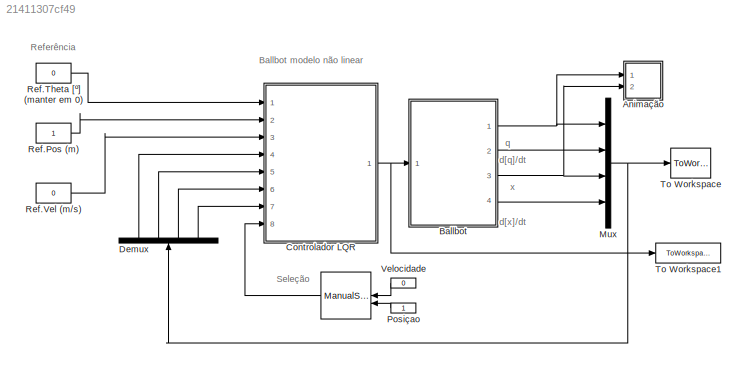
MODEL slx_21411307cf49
KIND model
CONFIG AbsTol = 1e-6
CONFIG FixedStep = auto
CONFIG InitFcn = parametros;\n\n\n
CONFIG MaxStep = 0.001
CONFIG MinStep = auto
CONFIG RelTol = 1e-3
CONFIG SampleTimeConstraint = Unconstrained
CONFIG Solver = ode45
CONFIG SolverMode = SingleTasking
CONFIG SolverName = ode45
CONFIG StartFcn = %vrview('Ballbot2')
CONFIG StartTime = 0
CONFIG StopFcn = graficos;
CONFIG StopTime = 90
BLOCK [ManualSwitch]  
  CurrentSetting = 0
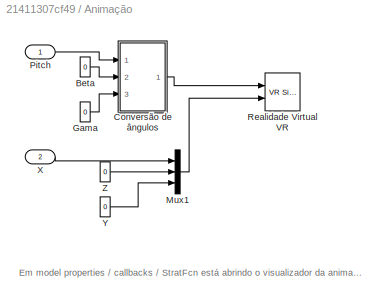
BLOCK [SubSystem] Animação 
  Ports = [2]
  RequestExecContextInheritance = off
BLOCK [Constant] Animação /Beta
  Value = 0
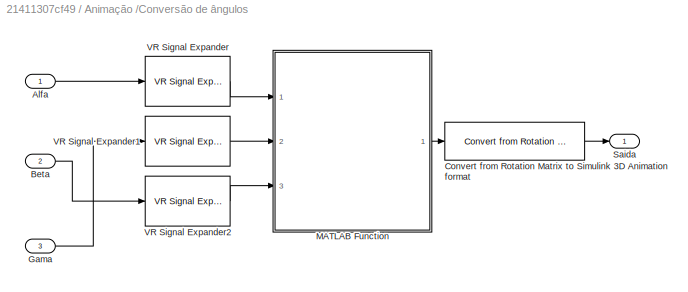
BLOCK [SubSystem] Animação /Conversão de ângulos
  Ports = [3, 1]
  RequestExecContextInheritance = off
BLOCK [Inport] Animação /Conversão de ângulos/Alfa
  IconDisplay = Port number
BLOCK [Inport] Animação /Conversão de ângulos/Beta
  IconDisplay = Port number
  Port = 2
BLOCK [Reference] Animação /Conversão de ângulos/Convert from Rotation Matrix to Simulink 3D Animation format  REF=mblibv1/Utilities/Convert from Rotation Matrix to
Simulink 3D Animation format
  Ports = [1, 1]
  SourceBlock = mblibv1/Utilities/Convert from Rotation Matrix to\nSimulink 3D Animation format
  SourceType = Convert from Rotation Matrix to Simulink 3D Animation format
BLOCK [Inport] Animação /Conversão de ângulos/Gama
  IconDisplay = Port number
  Port = 3
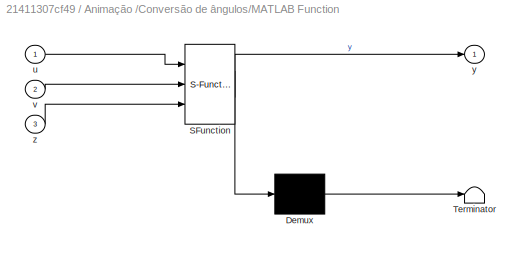
BLOCK [SubSystem] Animação /Conversão de ângulos/MATLAB Function
  ErrorFcn = Stateflow.Translate.translate
  PermitHierarchicalResolution = ExplicitOnly
  Ports = [3, 1]
  RequestExecContextInheritance = off
  SFBlockType = MATLAB Function
  TreatAsAtomicUnit = on
BLOCK [Demux] Animação /Conversão de ângulos/MATLAB Function/ Demux 
  Outputs = 1
  Ports = [1, 1]
BLOCK [S-Function] Animação /Conversão de ângulos/MATLAB Function/ SFunction 
  EnableBusSupport = on
  FunctionName = sf_sfun
  PortCounts = [3 2]
  Ports = [3, 2]
  Tag = Stateflow S-Function BALLBOT_LMI2 2
BLOCK [Terminator] Animação /Conversão de ângulos/MATLAB Function/ Terminator 
BLOCK [Inport] Animação /Conversão de ângulos/MATLAB Function/u
  IconDisplay = Port number
BLOCK [Inport] Animação /Conversão de ângulos/MATLAB Function/v
  IconDisplay = Port number
  Port = 2
BLOCK [Outport] Animação /Conversão de ângulos/MATLAB Function/y
  IconDisplay = Port number
BLOCK [Inport] Animação /Conversão de ângulos/MATLAB Function/z
  IconDisplay = Port number
  Port = 3
BLOCK [Outport] Animação /Conversão de ângulos/Saida
  IconDisplay = Port number
BLOCK [Reference] Animação /Conversão de ângulos/VR Signal Expander  REF=vrlib/VR Signal Expander
  Ports = [1, 1]
  SourceBlock = vrlib/VR Signal Expander
  SourceType = VR Signal Expander
  outidx = 1
  outwidth = 1
BLOCK [Reference] Animação /Conversão de ângulos/VR Signal Expander1  REF=vrlib/VR Signal Expander
  Ports = [1, 1]
  SourceBlock = vrlib/VR Signal Expander
  SourceType = VR Signal Expander
  outidx = 1
  outwidth = 1
BLOCK [Reference] Animação /Conversão de ângulos/VR Signal Expander2  REF=vrlib/VR Signal Expander
  Ports = [1, 1]
  SourceBlock = vrlib/VR Signal Expander
  SourceType = VR Signal Expander
  outidx = 1
  outwidth = 1
BLOCK [Constant] Animação /Gama
  Value = 0
BLOCK [Mux] Animação /Mux1
  DisplayOption = bar
  Inputs = 3
  Ports = [3, 1]
BLOCK [Inport] Animação /Pitch 
  IconDisplay = Port number
BLOCK [Reference] Animação /Realidade Virtual VR  REF=vrlib/VR Sink
  AllowVariableSize = off
  AutoView = on
  FieldsWritten = Ballbot.rotation.4.1.1.double#Ballbot.translation.3.1.1.double
  FigureProperties = {'Position', 'Name', 'Viewpoint', 'CameraBound', 'CameraDirection', 'CameraPosition', 'CameraUpVector', 'ZoomFactor', 'Antialiasing', 'Headlight', 'Lighting', 'NavPanel', 'Sound', 'StatusBar', 'Stereo3D', 'Stereo3DCameraOffset', 'Stereo3DHIT', 'ToolBar', 'Textures', 'Transparency', 'Triad', 'Wireframe', 'NavZones', 'NavMode', 'NavSpeed', 'CaptureFileFormat', 'CaptureFileName', 'Record2DCompressMet...<+708ch>
  InstantiateOnLoad = on
  Ports = [2]
  RemoteChange = off
  RemoteView = off
  SampleTime = 0.001
  SourceBlock = vrlib/VR Sink
  SourceType = Virtual Reality Sink
  VideoDimensions = []
  ViewEnable = on
  WorldFileName = Ballbot2.WRL
BLOCK [Inport] Animação /X
  IconDisplay = Port number
  Port = 2
BLOCK [Constant] Animação /Y
  Value = 0
BLOCK [Constant] Animação /Z
  Value = 0
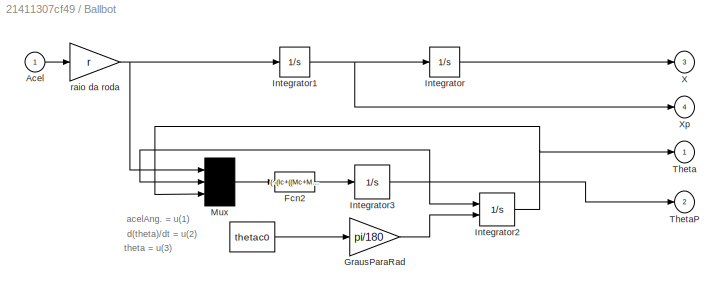
BLOCK [SubSystem] Ballbot
  Ports = [1, 4]
  RequestExecContextInheritance = off
BLOCK [Constant] Ballbot/   
  Value = thetac0
BLOCK [Inport] Ballbot/Acel
  IconDisplay = Port number
BLOCK [Fcn] Ballbot/Fcn2
  Expr = ( -(Ic+((Mc+Mr)*r*r)+Mc*L*r*cos(u(3)))*u(1) + Mc*g*L*sin(u(3))+Mc*r*L*u(2)*u(2)*sin(u(3)))/ (Ic+Mc*(L*L)+Mc*L*r*cos(u(3)))
BLOCK [Gain] Ballbot/GrausParaRad 
  Gain = pi/180
  OutDataTypeStr = Inherit: Inherit via internal rule
  ParamDataTypeStr = Inherit: Inherit via internal rule
  SaturateOnIntegerOverflow = off
BLOCK [Integrator] Ballbot/Integrator
  Ports = [1, 1]
BLOCK [Integrator] Ballbot/Integrator1
  Ports = [1, 1]
BLOCK [Integrator] Ballbot/Integrator2
  InitialConditionSource = external
  Ports = [2, 1]
BLOCK [Integrator] Ballbot/Integrator3
  Ports = [1, 1]
BLOCK [Mux] Ballbot/Mux
  Inputs = 3
  Ports = [3, 1]
BLOCK [Outport] Ballbot/Theta
  IconDisplay = Port number
BLOCK [Outport] Ballbot/ThetaP
  IconDisplay = Port number
  Port = 2
BLOCK [Outport] Ballbot/X
  IconDisplay = Port number
  Port = 3
BLOCK [Outport] Ballbot/Xp
  IconDisplay = Port number
  Port = 4
BLOCK [Gain] Ballbot/raio da roda
  Gain = r
  OutDataTypeStr = Inherit: Inherit via internal rule
  ParamDataTypeStr = Inherit: Inherit via internal rule
  SaturateOnIntegerOverflow = off
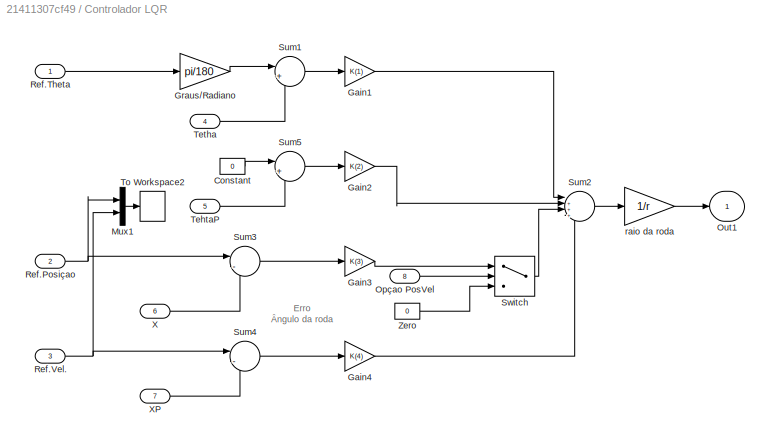
BLOCK [SubSystem] Controlador LQR
  Ports = [8, 1]
  RequestExecContextInheritance = off
BLOCK [Constant] Controlador LQR/Constant
  Value = 0
BLOCK [Gain] Controlador LQR/Gain1
  Gain = K(1)
  OutDataTypeStr = Inherit: Inherit via internal rule
  ParamDataTypeStr = Inherit: Inherit via internal rule
  SaturateOnIntegerOverflow = off
BLOCK [Gain] Controlador LQR/Gain2
  Gain = K(2)
  OutDataTypeStr = Inherit: Inherit via internal rule
  ParamDataTypeStr = Inherit: Inherit via internal rule
  SaturateOnIntegerOverflow = off
BLOCK [Gain] Controlador LQR/Gain3
  Gain = K(3)
  OutDataTypeStr = Inherit: Inherit via internal rule
  ParamDataTypeStr = Inherit: Inherit via internal rule
  SaturateOnIntegerOverflow = off
BLOCK [Gain] Controlador LQR/Gain4
  Gain = K(4)
  OutDataTypeStr = Inherit: Inherit via internal rule
  ParamDataTypeStr = Inherit: Inherit via internal rule
  SaturateOnIntegerOverflow = off
BLOCK [Gain] Controlador LQR/Graus//Radiano
  Gain = pi/180
  OutDataTypeStr = Inherit: Inherit via internal rule
  ParamDataTypeStr = Inherit: Inherit via internal rule
  SaturateOnIntegerOverflow = off
BLOCK [Mux] Controlador LQR/Mux1
  DisplayOption = bar
  Inputs = 2
  Ports = [2, 1]
BLOCK [Inport] Controlador LQR/Opçao PosVel
  IconDisplay = Port number
  Port = 8
BLOCK [Outport] Controlador LQR/Out1
  IconDisplay = Port number
BLOCK [Inport] Controlador LQR/Ref.Posiçao
  IconDisplay = Port number
  Port = 2
BLOCK [Inport] Controlador LQR/Ref.Theta
  IconDisplay = Port number
BLOCK [Inport] Controlador LQR/Ref.Vel.
  IconDisplay = Port number
  Port = 3
BLOCK [Sum] Controlador LQR/Sum1
  IconShape = round
  InputSameDT = off
  Inputs = |+-
  OutDataTypeStr = Inherit: Inherit via internal rule
  Ports = [2, 1]
  SaturateOnIntegerOverflow = off
BLOCK [Sum] Controlador LQR/Sum2
  IconShape = round
  InputSameDT = off
  Inputs = |++++
  OutDataTypeStr = Inherit: Inherit via internal rule
  Ports = [4, 1]
  SaturateOnIntegerOverflow = off
BLOCK [Sum] Controlador LQR/Sum3
  IconShape = round
  InputSameDT = off
  Inputs = |-+
  OutDataTypeStr = Inherit: Inherit via internal rule
  Ports = [2, 1]
  SaturateOnIntegerOverflow = off
BLOCK [Sum] Controlador LQR/Sum4
  IconShape = round
  InputSameDT = off
  Inputs = |-+
  OutDataTypeStr = Inherit: Inherit via internal rule
  Ports = [2, 1]
  SaturateOnIntegerOverflow = off
BLOCK [Sum] Controlador LQR/Sum5
  IconShape = round
  InputSameDT = off
  Inputs = |+-
  OutDataTypeStr = Inherit: Inherit via internal rule
  Ports = [2, 1]
  SaturateOnIntegerOverflow = off
BLOCK [Switch] Controlador LQR/Switch
  Criteria = u2 > Threshold
  InputSameDT = off
  SaturateOnIntegerOverflow = off
BLOCK [Inport] Controlador LQR/TehtaP
  IconDisplay = Port number
  Port = 5
BLOCK [Inport] Controlador LQR/Tetha
  IconDisplay = Port number
  Port = 4
BLOCK [ToWorkspace] Controlador LQR/To Workspace2
  FixptAsFi = on
  MaxDataPoints = inf
  Ports = [1]
  SampleTime = -1
  Save2DSignal = 3-D array (concatenate along third dimension)
  SaveFormat = Structure With Time
  VariableName = ref
BLOCK [Inport] Controlador LQR/X
  IconDisplay = Port number
  Port = 6
BLOCK [Inport] Controlador LQR/XP
  IconDisplay = Port number
  Port = 7
BLOCK [Constant] Controlador LQR/Zero
  Value = 0
BLOCK [Gain] Controlador LQR/raio da roda
  Gain = 1/r
  OutDataTypeStr = Inherit: Inherit via internal rule
  ParamDataTypeStr = Inherit: Inherit via internal rule
  SaturateOnIntegerOverflow = off
BLOCK [Demux] Demux
  DisplayOption = bar
  Ports = [1, 4]
BLOCK [Mux] Mux
  DisplayOption = bar
  Ports = [4, 1]
BLOCK [Constant] Posiçao
BLOCK [Constant] Ref.Pos (m) 
BLOCK [Constant] Ref.Theta [º] (manter em 0)
  Value = 0
BLOCK [Constant] Ref.Vel (m//s)
  Value = 0
BLOCK [ToWorkspace] To Workspace
  FixptAsFi = on
  MaxDataPoints = inf
  Ports = [1]
  SampleTime = -1
  Save2DSignal = 3-D array (concatenate along third dimension)
  SaveFormat = Structure With Time
  VariableName = dados
BLOCK [ToWorkspace] To Workspace1
  FixptAsFi = on
  MaxDataPoints = inf
  Ports = [1]
  SampleTime = -1
  Save2DSignal = 3-D array (concatenate along third dimension)
  SaveFormat = Structure With Time
  VariableName = outControle
BLOCK [Constant] Velocidade
  Value = 0
ANNOTATION (root): x
ANNOTATION (root): d[ x ]/dt
ANNOTATION (root): d[q]/dt
ANNOTATION (root): q
ANNOTATION (root): Ballbot modelo não linear
ANNOTATION (root): Referência
ANNOTATION (root): Seleção
ANNOTATION Animação : Em model properties / callbacks / StratFcn está abrindo o visualizador da animaçao. Se comentar esta linha, o plot será mais rápido sem a animação
ANNOTATION Ballbot: acelAng. = u(1)
ANNOTATION Ballbot: d(theta)/dt = u(2)
ANNOTATION Ballbot: theta = u(3)
ANNOTATION Controlador LQR: Erro Ângulo da roda
LINE  :1 -> Controlador LQR:8
LINE Animação /Beta:1 -> Animação /Conversão de ângulos:2
LINE Animação /Conversão de ângulos/Alfa:1 -> Animação /Conversão de ângulos/VR Signal Expander:1
LINE Animação /Conversão de ângulos/Beta:1 -> Animação /Conversão de ângulos/VR Signal Expander2:1
LINE Animação /Conversão de ângulos/Convert from Rotation Matrix to Simulink 3D Animation format:1 -> Animação /Conversão de ângulos/Saida:1
LINE Animação /Conversão de ângulos/Gama:1 -> Animação /Conversão de ângulos/VR Signal Expander1:1
LINE Animação /Conversão de ângulos/MATLAB Function:1 -> Animação /Conversão de ângulos/Convert from Rotation Matrix to Simulink 3D Animation format:1
LINE Animação /Conversão de ângulos/VR Signal Expander1:1 -> Animação /Conversão de ângulos/MATLAB Function:2
LINE Animação /Conversão de ângulos/VR Signal Expander2:1 -> Animação /Conversão de ângulos/MATLAB Function:3
LINE Animação /Conversão de ângulos/VR Signal Expander:1 -> Animação /Conversão de ângulos/MATLAB Function:1
LINE Animação /Conversão de ângulos:1 -> Animação /Realidade Virtual VR:1
LINE Animação /Gama:1 -> Animação /Conversão de ângulos:3
LINE Animação /Mux1:1 -> Animação /Realidade Virtual VR:2
LINE Animação /Pitch :1 -> Animação /Conversão de ângulos:1
LINE Animação /X:1 -> Animação /Mux1:1
LINE Animação /Y:1 -> Animação /Mux1:3
LINE Animação /Z:1 -> Animação /Mux1:2
LINE Ballbot/   :1 -> Ballbot/GrausParaRad :1
LINE Ballbot/Acel:1 -> Ballbot/raio da roda:1
LINE Ballbot/Fcn2:1 -> Ballbot/Integrator3:1
LINE Ballbot/GrausParaRad :1 -> Ballbot/Integrator2:2
NET Ballbot/Integrator1:1 -> Ballbot/Integrator:1, Ballbot/Xp:1
NET Ballbot/Integrator2:1 -> Ballbot/Mux:3, Ballbot/Theta:1
NET Ballbot/Integrator3:1 -> Ballbot/Integrator2:1, Ballbot/Mux:2, Ballbot/ThetaP:1
LINE Ballbot/Integrator:1 -> Ballbot/X:1
LINE Ballbot/Mux:1 -> Ballbot/Fcn2:1
NET Ballbot/raio da roda:1 -> Ballbot/Integrator1:1, Ballbot/Mux:1
NET Ballbot:1 -> Animação :1, Mux:1
LINE Ballbot:2 -> Mux:2
NET Ballbot:3 -> Animação :2, Mux:3
LINE Ballbot:4 -> Mux:4
LINE Controlador LQR/Constant:1 -> Controlador LQR/Sum5:1
LINE Controlador LQR/Gain1:1 -> Controlador LQR/Sum2:1
LINE Controlador LQR/Gain2:1 -> Controlador LQR/Sum2:2
LINE Controlador LQR/Gain3:1 -> Controlador LQR/Switch:1
LINE Controlador LQR/Gain4:1 -> Controlador LQR/Sum2:4
LINE Controlador LQR/Graus//Radiano:1 -> Controlador LQR/Sum1:1
LINE Controlador LQR/Mux1:1 -> Controlador LQR/To Workspace2:1
LINE Controlador LQR/Opçao PosVel:1 -> Controlador LQR/Switch:2
NET Controlador LQR/Ref.Posiçao:1 -> Controlador LQR/Mux1:1, Controlador LQR/Sum3:1
LINE Controlador LQR/Ref.Theta:1 -> Controlador LQR/Graus//Radiano:1
NET Controlador LQR/Ref.Vel.:1 -> Controlador LQR/Mux1:2, Controlador LQR/Sum4:1
LINE Controlador LQR/Sum1:1 -> Controlador LQR/Gain1:1
LINE Controlador LQR/Sum2:1 -> Controlador LQR/raio da roda:1
LINE Controlador LQR/Sum3:1 -> Controlador LQR/Gain3:1
LINE Controlador LQR/Sum4:1 -> Controlador LQR/Gain4:1
LINE Controlador LQR/Sum5:1 -> Controlador LQR/Gain2:1
LINE Controlador LQR/Switch:1 -> Controlador LQR/Sum2:3
LINE Controlador LQR/TehtaP:1 -> Controlador LQR/Sum5:2
LINE Controlador LQR/Tetha:1 -> Controlador LQR/Sum1:2
LINE Controlador LQR/X:1 -> Controlador LQR/Sum3:2
LINE Controlador LQR/XP:1 -> Controlador LQR/Sum4:2
LINE Controlador LQR/Zero:1 -> Controlador LQR/Switch:3
LINE Controlador LQR/raio da roda:1 -> Controlador LQR/Out1:1
NET Controlador LQR:1 -> Ballbot:1, To Workspace1:1
LINE Demux:1 -> Controlador LQR:4
LINE Demux:2 -> Controlador LQR:5
LINE Demux:3 -> Controlador LQR:6
LINE Demux:4 -> Controlador LQR:7
NET Mux:1 -> Demux:1, To Workspace:1
LINE Posiçao:1 ->  :2
LINE Ref.Pos (m) :1 -> Controlador LQR:2
LINE Ref.Theta [º] (manter em 0):1 -> Controlador LQR:1
LINE Ref.Vel (m//s):1 -> Controlador LQR:3
LINE Velocidade:1 ->  :1
note: NET lines group one-source signal fan-out (src -> all destinations, sorted); 1:1 wires keep LINE
CHART Animação /Conversão 
de ângulos/MATLAB Function states=1 transitions=1
  STATE_LABEL 'eML_blk_kernel()'
  STATE_LABEL 'SCRIPT:\nfunction y = fcn(u,v,z)\n%#codegen\ntemp=eul2rotm([u v z]);\nsaida=[temp(1,:) temp(2,:) temp(3,:)];\ny = saida;\nend'
